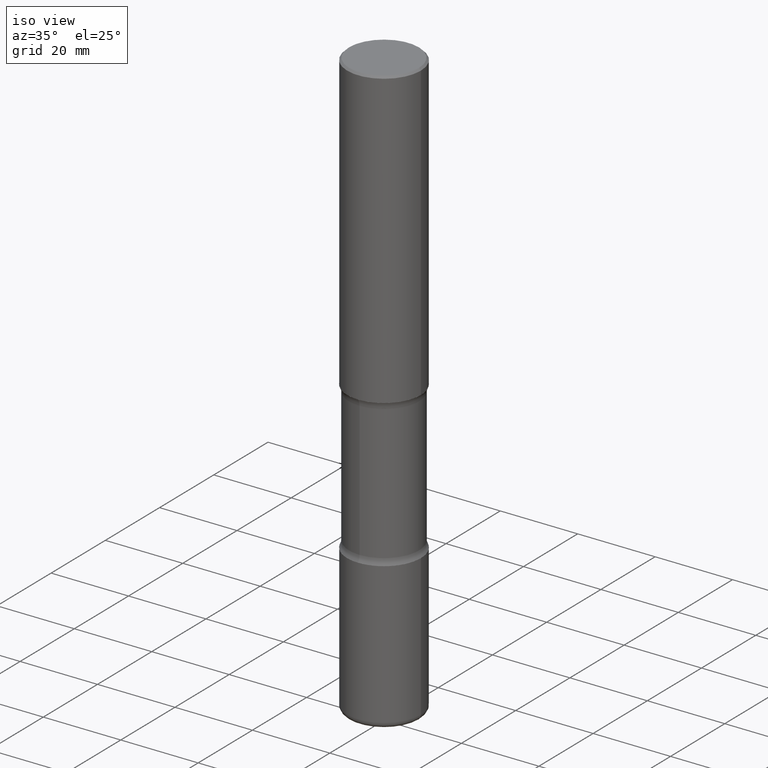
[diagram: clean part render]
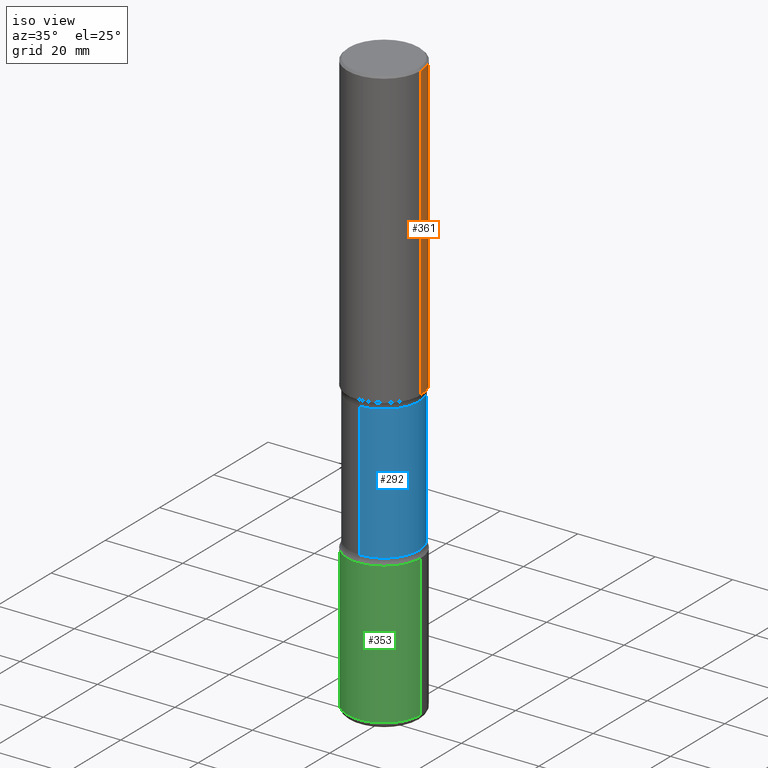
[diagram: same view with three faces highlighted in distinct colors, each labeled with its STEP entity id]
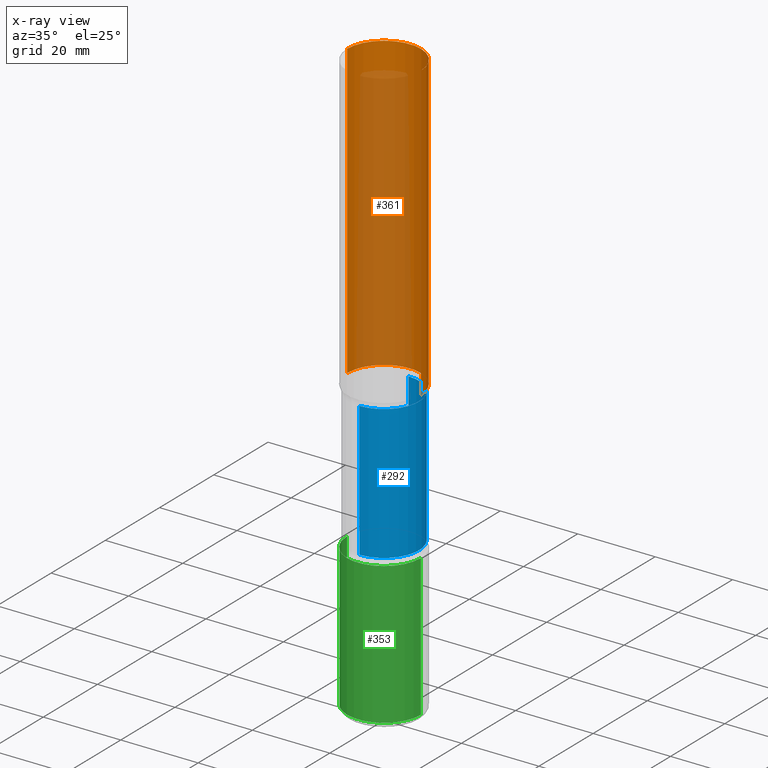
[diagram: x-ray of the same camera — body ghosted, the three highlighted faces saturated]
A machine part, iso view with three faces highlighted in distinct colors.
The next image is the same camera in x-ray (body ghosted, the three faces saturated) — at least one of them is partly hidden behind the body in this view.
Their STEP definitions:

[orange] entity #361 — the highlighted cylindrical surface (partial cylindrical patch) has radius 9.525 mm, axis along (-0, 0, 1).
#48 = CARTESIAN_POINT ( 'NONE',  ( -0.3750000000000003886, -2.607601562552767029E-15, -2.999999999999999112 ) ) ;
#51 = CARTESIAN_POINT ( 'NONE',  ( 4.890937612370289799E-31, -6.982962677686315028E-17, -0.02000000000000006981 ) ) ;
#59 = DIRECTION ( 'NONE',  ( -2.445468806185136597E-29, 3.491481338843145583E-15, 1.000000000000000000 ) ) ;
#66 = ORIENTED_EDGE ( 'NONE', *, *, #303, .T. ) ;
#71 = DIRECTION ( 'NONE',  ( -2.445468806185136877E-29, 3.491481338843145188E-15, 1.000000000000000000 ) ) ;
#80 = ORIENTED_EDGE ( 'NONE', *, *, #354, .T. ) ;
#87 = ORIENTED_EDGE ( 'NONE', *, *, #558, .F. ) ;
#105 = AXIS2_PLACEMENT_3D ( 'NONE', #517, #59, #333 ) ;
#119 = CARTESIAN_POINT ( 'NONE',  ( -0.3750000000000002220, 2.664535259100377275E-15, -1.844600658845590719E-29 ) ) ;
#141 = VERTEX_POINT ( 'NONE', #442 ) ;
#158 = DIRECTION ( 'NONE',  ( 1.000000000000000000, -6.982962677686266711E-15, 4.876176775795935793E-29 ) ) ;
#180 = VERTEX_POINT ( 'NONE', #298 ) ;
#197 = CYLINDRICAL_SURFACE ( 'NONE', #273, 0.3750000000000002220 ) ;
#222 = DIRECTION ( 'NONE',  ( -2.445468806185136597E-29, 3.491481338843145583E-15, 1.000000000000000000 ) ) ;
#228 = VECTOR ( 'NONE', #71, 39.37007874015748143 ) ;
#237 = FACE_OUTER_BOUND ( 'NONE', #319, .T. ) ;
#238 = CARTESIAN_POINT ( 'NONE',  ( 0.3750000000000002220, -2.618611004132351594E-15, 1.828566290923477043E-29 ) ) ;
#273 = AXIS2_PLACEMENT_3D ( 'NONE', #383, #552, #158 ) ;
#298 = CARTESIAN_POINT ( 'NONE',  ( -0.3750000000000001110, 2.548781377355487113E-15, -0.02000000000000006981 ) ) ;
#303 = EDGE_CURVE ( 'NONE', #141, #400, #455, .T. ) ;
#310 = DIRECTION ( 'NONE',  ( 1.000000000000000000, -6.982962677686265922E-15, 0.000000000000000000 ) ) ;
#319 = EDGE_LOOP ( 'NONE', ( #66, #80, #411, #87 ) ) ;
#326 = CARTESIAN_POINT ( 'NONE',  ( 0.3750000000000001110, -2.642516375941188423E-15, -0.02000000000000006981 ) ) ;
#333 = DIRECTION ( 'NONE',  ( 1.000000000000000000, -6.982962677686265922E-15, 0.000000000000000000 ) ) ;
#349 = LINE ( 'NONE', #238, #521 ) ;
#354 = EDGE_CURVE ( 'NONE', #400, #180, #469, .T. ) ;
#361 = ADVANCED_FACE ( 'NONE', ( #237 ), #197, .T. ) ;
#367 = VERTEX_POINT ( 'NONE', #326 ) ;
#383 = CARTESIAN_POINT ( 'NONE',  ( 0.000000000000000000, 0.000000000000000000, 0.000000000000000000 ) ) ;
#400 = VERTEX_POINT ( 'NONE', #48 ) ;
#401 = CIRCLE ( 'NONE', #419, 0.3750000000000001110 ) ;
#411 = ORIENTED_EDGE ( 'NONE', *, *, #448, .F. ) ;
#419 = AXIS2_PLACEMENT_3D ( 'NONE', #51, #222, #310 ) ;
#442 = CARTESIAN_POINT ( 'NONE',  ( 0.3750000000000003886, -1.309305502066178637E-14, -2.999999999999999112 ) ) ;
#448 = EDGE_CURVE ( 'NONE', #367, #180, #401, .T. ) ;
#455 = CIRCLE ( 'NONE', #105, 0.3750000000000003886 ) ;
#469 = LINE ( 'NONE', #119, #228 ) ;
#495 = DIRECTION ( 'NONE',  ( -2.445468806185136877E-29, 3.491481338843145188E-15, 1.000000000000000000 ) ) ;
#517 = CARTESIAN_POINT ( 'NONE',  ( 7.336406418555407548E-29, -1.047444401652943320E-14, -2.999999999999999112 ) ) ;
#521 = VECTOR ( 'NONE', #495, 39.37007874015748143 ) ;
#552 = DIRECTION ( 'NONE',  ( -2.445468806185136597E-29, 3.491481338843145583E-15, 1.000000000000000000 ) ) ;
#558 = EDGE_CURVE ( 'NONE', #141, #367, #349, .T. ) ;

[blue] entity #292 — the highlighted cylindrical surface (partial cylindrical patch) has radius 9.0488 mm, axis along (0, -0, -1).
#4 = ORIENTED_EDGE ( 'NONE', *, *, #426, .T. ) ;
#7 = VERTEX_POINT ( 'NONE', #360 ) ;
#99 = AXIS2_PLACEMENT_3D ( 'NONE', #256, #482, #479 ) ;
#127 = DIRECTION ( 'NONE',  ( 2.508247471065963170E-29, -3.401578717594097873E-15, -1.000000000000000000 ) ) ;
#146 = AXIS2_PLACEMENT_3D ( 'NONE', #413, #331, #378 ) ;
#153 = CIRCLE ( 'NONE', #99, 0.3562500000000000111 ) ;
#175 = ORIENTED_EDGE ( 'NONE', *, *, #478, .F. ) ;
#182 = DIRECTION ( 'NONE',  ( 2.508247471065963170E-29, -3.401578717594097873E-15, -1.000000000000000000 ) ) ;
#199 = VERTEX_POINT ( 'NONE', #408 ) ;
#214 = DIRECTION ( 'NONE',  ( 6.982962677686265133E-15, 1.000000000000000000, -3.067338098149347905E-15 ) ) ;
#251 = CYLINDRICAL_SURFACE ( 'NONE', #371, 0.3562500000000000111 ) ;
#256 = CARTESIAN_POINT ( 'NONE',  ( 7.407401089244291879E-29, -1.083328454578828421E-14, -3.065847835955329614 ) ) ;
#264 = EDGE_CURVE ( 'NONE', #199, #328, #519, .T. ) ;
#292 = ADVANCED_FACE ( 'NONE', ( #324 ), #251, .T. ) ;
#293 = EDGE_CURVE ( 'NONE', #7, #328, #432, .T. ) ;
#317 = VECTOR ( 'NONE', #182, 39.37007874015748143 ) ;
#324 = FACE_OUTER_BOUND ( 'NONE', #343, .T. ) ;
#328 = VERTEX_POINT ( 'NONE', #520 ) ;
#331 = DIRECTION ( 'NONE',  ( 2.508247471065963170E-29, -3.401578717594097873E-15, -1.000000000000000000 ) ) ;
#343 = EDGE_LOOP ( 'NONE', ( #4, #380, #427, #175 ) ) ;
#360 = CARTESIAN_POINT ( 'NONE',  ( -2.508369580435144205E-15, -0.3562500000000108358, -3.065847835955328282 ) ) ;
#368 = VERTEX_POINT ( 'NONE', #514 ) ;
#371 = AXIS2_PLACEMENT_3D ( 'NONE', #454, #430, #214 ) ;
#378 = DIRECTION ( 'NONE',  ( 6.982962677686265133E-15, 1.000000000000000000, -3.067338098149347905E-15 ) ) ;
#380 = ORIENTED_EDGE ( 'NONE', *, *, #293, .T. ) ;
#387 = LINE ( 'NONE', #397, #317 ) ;
#397 = CARTESIAN_POINT ( 'NONE',  ( 2.487680453925879638E-15, 0.3562499999999791389, -6.000000000000000888 ) ) ;
#408 = CARTESIAN_POINT ( 'NONE',  ( 2.487680453925840195E-15, 0.3562499999999844680, -4.434152164044670386 ) ) ;
#413 = CARTESIAN_POINT ( 'NONE',  ( 1.083944695982298980E-28, -1.548767942740887449E-14, -4.434152164044669497 ) ) ;
#426 = EDGE_CURVE ( 'NONE', #368, #7, #153, .T. ) ;
#427 = ORIENTED_EDGE ( 'NONE', *, *, #264, .F. ) ;
#430 = DIRECTION ( 'NONE',  ( 2.508247471065963170E-29, -3.401578717594097873E-15, -1.000000000000000000 ) ) ;
#432 = LINE ( 'NONE', #556, #502 ) ;
#454 = CARTESIAN_POINT ( 'NONE',  ( 1.476698083443205790E-28, -2.081403410118529621E-14, -5.999999999999999112 ) ) ;
#478 = EDGE_CURVE ( 'NONE', #368, #199, #387, .T. ) ;
#479 = DIRECTION ( 'NONE',  ( 6.982962677686265133E-15, 1.000000000000000000, -3.067338098149347905E-15 ) ) ;
#482 = DIRECTION ( 'NONE',  ( 2.508247471065963170E-29, -3.401578717594097873E-15, -1.000000000000000000 ) ) ;
#502 = VECTOR ( 'NONE', #127, 39.37007874015748143 ) ;
#514 = CARTESIAN_POINT ( 'NONE',  ( 2.487680453925806274E-15, 0.3562499999999891309, -3.065847835955330503 ) ) ;
#519 = CIRCLE ( 'NONE', #146, 0.3562500000000000111 ) ;
#520 = CARTESIAN_POINT ( 'NONE',  ( -2.508369580435107128E-15, -0.3562500000000154987, -4.434152164044668609 ) ) ;
#556 = CARTESIAN_POINT ( 'NONE',  ( -2.444052411705960129E-15, -0.3562500000000208278, -5.999999999999998224 ) ) ;

[green] entity #353 — the highlighted cylindrical surface (partial cylindrical patch) has radius 9.525 mm, axis along (-0, 0, 1).
#5 = DIRECTION ( 'NONE',  ( -2.445468806185136597E-29, 3.491481338843145583E-15, 1.000000000000000000 ) ) ;
#10 = ORIENTED_EDGE ( 'NONE', *, *, #255, .T. ) ;
#37 = DIRECTION ( 'NONE',  ( -2.445468806185136597E-29, 3.491481338843145583E-15, 1.000000000000000000 ) ) ;
#38 = CARTESIAN_POINT ( 'NONE',  ( 0.3750000000000002220, -2.335801015686062967E-14, -5.939999999999999503 ) ) ;
#41 = CARTESIAN_POINT ( 'NONE',  ( -0.3750000000000004441, 2.664535259100378852E-15, -1.844600658845591840E-29 ) ) ;
#69 = DIRECTION ( 'NONE',  ( 1.000000000000000000, -6.982962677686265922E-15, 4.876176775795935793E-29 ) ) ;
#74 = EDGE_CURVE ( 'NONE', #280, #118, #409, .T. ) ;
#76 = VECTOR ( 'NONE', #506, 39.37007874015748143 ) ;
#92 = VERTEX_POINT ( 'NONE', #471 ) ;
#108 = EDGE_LOOP ( 'NONE', ( #436, #542, #10, #414 ) ) ;
#118 = VERTEX_POINT ( 'NONE', #38 ) ;
#124 = CYLINDRICAL_SURFACE ( 'NONE', #277, 0.3750000000000004441 ) ;
#130 = DIRECTION ( 'NONE',  ( -2.445468806185136877E-29, 3.491481338843145188E-15, 1.000000000000000000 ) ) ;
#136 = DIRECTION ( 'NONE',  ( 1.000000000000000000, -6.982962677686265922E-15, 0.000000000000000000 ) ) ;
#138 = VECTOR ( 'NONE', #130, 39.37007874015748143 ) ;
#150 = EDGE_CURVE ( 'NONE', #393, #92, #323, .T. ) ;
#161 = FACE_OUTER_BOUND ( 'NONE', #108, .T. ) ;
#169 = DIRECTION ( 'NONE',  ( 1.000000000000000000, -6.982962677686263555E-15, 0.000000000000000000 ) ) ;
#171 = CARTESIAN_POINT ( 'NONE',  ( -0.3750000000000002220, -1.807486389362790396E-14, -5.939999999999999503 ) ) ;
#174 = EDGE_CURVE ( 'NONE', #280, #393, #557, .T. ) ;
#202 = AXIS2_PLACEMENT_3D ( 'NONE', #210, #223, #136 ) ;
#210 = CARTESIAN_POINT ( 'NONE',  ( 1.100460962783311244E-28, -1.571166602479415374E-14, -4.499999999999999112 ) ) ;
#223 = DIRECTION ( 'NONE',  ( -2.445468806185136597E-29, 3.491481338843145583E-15, 1.000000000000000000 ) ) ;
#255 = EDGE_CURVE ( 'NONE', #118, #92, #470, .T. ) ;
#277 = AXIS2_PLACEMENT_3D ( 'NONE', #547, #37, #69 ) ;
#280 = VERTEX_POINT ( 'NONE', #171 ) ;
#323 = CIRCLE ( 'NONE', #202, 0.3750000000000003886 ) ;
#329 = CARTESIAN_POINT ( 'NONE',  ( 1.452608470873971031E-28, -2.073939915272828281E-14, -5.939999999999999503 ) ) ;
#353 = ADVANCED_FACE ( 'NONE', ( #161 ), #124, .T. ) ;
#393 = VERTEX_POINT ( 'NONE', #534 ) ;
#409 = CIRCLE ( 'NONE', #438, 0.3750000000000004996 ) ;
#414 = ORIENTED_EDGE ( 'NONE', *, *, #150, .F. ) ;
#436 = ORIENTED_EDGE ( 'NONE', *, *, #174, .F. ) ;
#438 = AXIS2_PLACEMENT_3D ( 'NONE', #329, #5, #169 ) ;
#470 = LINE ( 'NONE', #511, #76 ) ;
#471 = CARTESIAN_POINT ( 'NONE',  ( 0.3750000000000003886, -1.833027702892650691E-14, -4.499999999999999112 ) ) ;
#506 = DIRECTION ( 'NONE',  ( -2.445468806185136877E-29, 3.491481338843145188E-15, 1.000000000000000000 ) ) ;
#511 = CARTESIAN_POINT ( 'NONE',  ( 0.3750000000000004441, -2.618611004132352777E-15, 1.828566290923478164E-29 ) ) ;
#534 = CARTESIAN_POINT ( 'NONE',  ( -0.3750000000000003886, -1.556099732966084100E-14, -4.499999999999999112 ) ) ;
#542 = ORIENTED_EDGE ( 'NONE', *, *, #74, .T. ) ;
#547 = CARTESIAN_POINT ( 'NONE',  ( 0.000000000000000000, 0.000000000000000000, 0.000000000000000000 ) ) ;
#557 = LINE ( 'NONE', #41, #138 ) ;